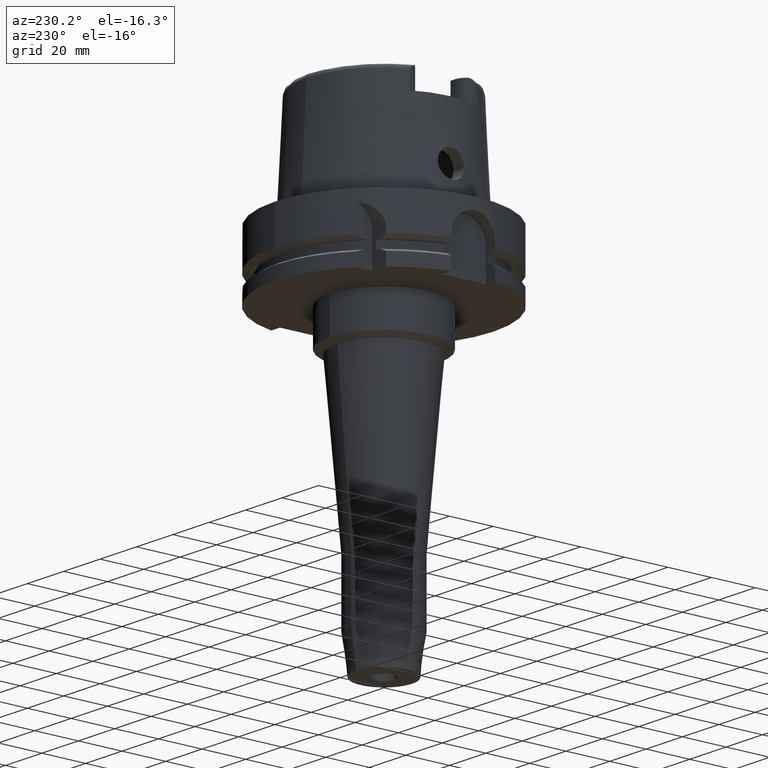
[diagram: clean part render]
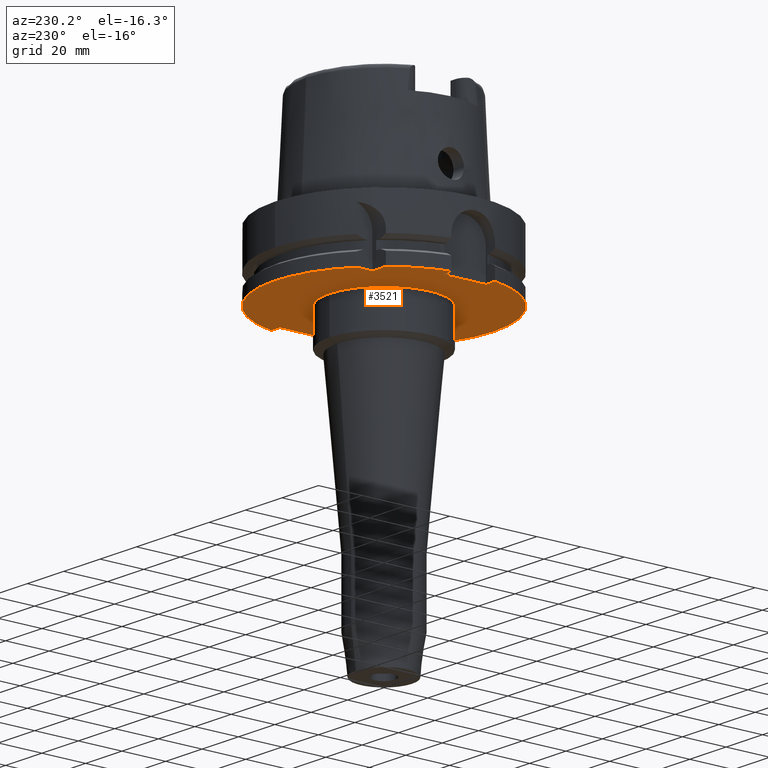
[diagram: same view with one face highlighted and labeled with its STEP entity id]
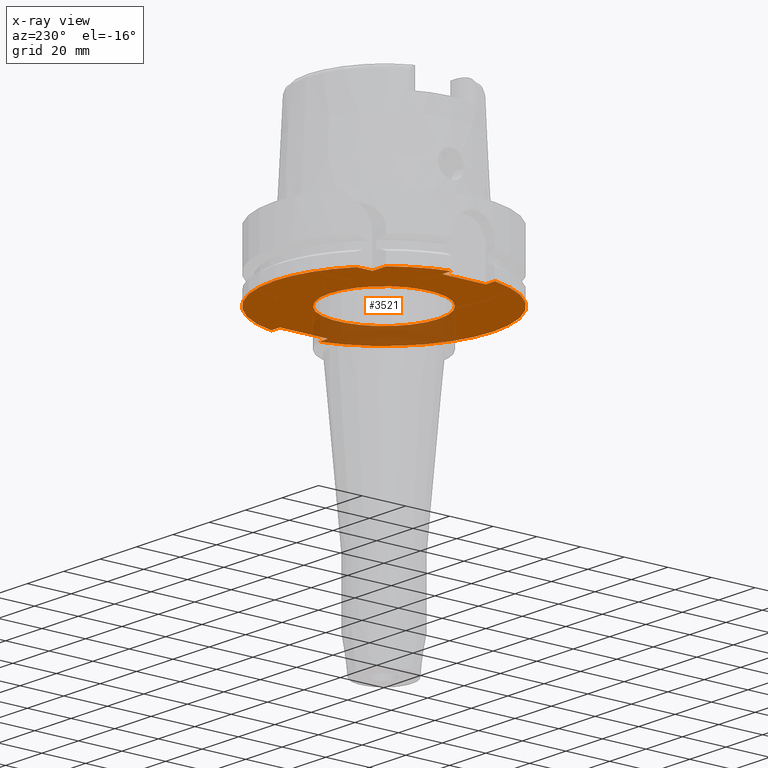
[diagram: x-ray of the same camera — body ghosted, the highlighted face saturated]
A machine part, auxiliary view. The second image highlights one B-rep face of the part: STEP entity #3521.
The next image is the same camera in x-ray: the body ghosted, the highlighted face saturated — about 24% of this face is hidden behind the body in this view.
In plain terms, the highlighted planar face has unit normal (0, 0, 1).
Its self-contained STEP definition (entity closure, byte-faithful):
#1225=DIRECTION('',(-1.E0,-4.798503851106E-14,0.E0));
#1226=VECTOR('',#1225,7.329756630709E0);
#1227=CARTESIAN_POINT('',(-3.15E1,3.15E1,-2.9E1));
#1228=LINE('',#1227,#1226);
#1232=CARTESIAN_POINT('',(0.E0,0.E0,-2.9E1));
#1233=DIRECTION('',(0.E0,0.E0,1.E0));
#1234=DIRECTION('',(-7.765951326142E-1,6.3E-1,0.E0));
#1235=AXIS2_PLACEMENT_3D('',#1232,#1233,#1234);
#1240=DIRECTION('',(-1.E0,-4.627973610177E-14,0.E0));
#1241=VECTOR('',#1240,4.989794855662E0);
#1242=CARTESIAN_POINT('',(-4.4E1,-1.E1,-2.9E1));
#1243=LINE('',#1242,#1241);
#1247=CARTESIAN_POINT('',(0.E0,0.E0,-2.9E1));
#1248=DIRECTION('',(0.E0,0.E0,1.E0));
#1249=DIRECTION('',(-9.797958971133E-1,-2.E-1,0.E0));
#1250=AXIS2_PLACEMENT_3D('',#1247,#1248,#1249);
#1255=CARTESIAN_POINT('',(0.E0,0.E0,-2.9E1));
#1256=DIRECTION('',(0.E0,0.E0,1.E0));
#1257=DIRECTION('',(0.E0,-1.E0,0.E0));
#1258=AXIS2_PLACEMENT_3D('',#1255,#1256,#1257);
#1263=DIRECTION('',(-1.E0,-1.711257052401E-14,0.E0));
#1264=VECTOR('',#1263,4.774993593029E0);
#1265=CARTESIAN_POINT('',(4.877499359303E1,-1.1E1,-2.9E1));
#1266=LINE('',#1265,#1264);
#1270=CARTESIAN_POINT('',(0.E0,0.E0,-2.9E1));
#1271=DIRECTION('',(0.E0,0.E0,1.E0));
#1272=DIRECTION('',(9.754998718606E-1,2.2E-1,0.E0));
#1273=AXIS2_PLACEMENT_3D('',#1270,#1271,#1272);
#1278=CARTESIAN_POINT('',(0.E0,0.E0,-2.9E1));
#1279=DIRECTION('',(0.E0,0.E0,1.E0));
#1280=DIRECTION('',(0.E0,1.E0,0.E0));
#1281=AXIS2_PLACEMENT_3D('',#1278,#1279,#1280);
#1286=CARTESIAN_POINT('',(0.E0,0.E0,-2.9E1));
#1287=DIRECTION('',(0.E0,0.E0,-1.E0));
#1288=DIRECTION('',(0.E0,-1.E0,0.E0));
#1289=AXIS2_PLACEMENT_3D('',#1286,#1287,#1288);
#1294=CARTESIAN_POINT('',(0.E0,0.E0,-2.9E1));
#1295=DIRECTION('',(0.E0,0.E0,-1.E0));
#1296=DIRECTION('',(0.E0,1.E0,0.E0));
#1297=AXIS2_PLACEMENT_3D('',#1294,#1295,#1296);
#1302=DIRECTION('',(4.798503851106E-14,1.E0,0.E0));
#1303=VECTOR('',#1302,7.329756630709E0);
#1304=CARTESIAN_POINT('',(-3.15E1,3.15E1,-2.9E1));
#1305=LINE('',#1304,#1303);
#1348=DIRECTION('',(-1.E0,1.785659532940E-14,0.E0));
#1349=VECTOR('',#1348,4.774993593029E0);
#1350=CARTESIAN_POINT('',(4.877499359303E1,1.1E1,-2.9E1));
#1351=LINE('',#1350,#1349);
#1362=DIRECTION('',(0.E0,-1.E0,0.E0));
#1363=VECTOR('',#1362,2.2E1);
#1364=CARTESIAN_POINT('',(4.4E1,1.1E1,-2.9E1));
#1365=LINE('',#1364,#1363);
#1441=DIRECTION('',(0.E0,1.E0,0.E0));
#1442=VECTOR('',#1441,2.E1);
#1443=CARTESIAN_POINT('',(-4.4E1,-1.E1,-2.9E1));
#1444=LINE('',#1443,#1442);
#1464=DIRECTION('',(-1.E0,4.627973610177E-14,0.E0));
#1465=VECTOR('',#1464,4.989794855662E0);
#1466=CARTESIAN_POINT('',(-4.4E1,1.E1,-2.9E1));
#1467=LINE('',#1466,#1465);
#2425=CARTESIAN_POINT('',(0.E0,2.5E1,-2.9E1));
#2426=VERTEX_POINT('',#2425);
#2427=CARTESIAN_POINT('',(0.E0,-2.5E1,-2.9E1));
#2428=VERTEX_POINT('',#2427);
#2429=CARTESIAN_POINT('',(-3.15E1,3.15E1,-2.9E1));
#2430=CARTESIAN_POINT('',(-3.15E1,3.882975663071E1,-2.9E1));
#2431=VERTEX_POINT('',#2429);
#2432=VERTEX_POINT('',#2430);
#2433=CARTESIAN_POINT('',(-3.882975663071E1,3.15E1,-2.9E1));
#2434=VERTEX_POINT('',#2433);
#2435=CARTESIAN_POINT('',(-4.898979485566E1,1.E1,-2.9E1));
#2436=VERTEX_POINT('',#2435);
#2437=CARTESIAN_POINT('',(-4.4E1,1.E1,-2.9E1));
#2438=VERTEX_POINT('',#2437);
#2439=CARTESIAN_POINT('',(-4.4E1,-1.E1,-2.9E1));
#2440=VERTEX_POINT('',#2439);
#2441=CARTESIAN_POINT('',(-4.898979485566E1,-1.E1,-2.9E1));
#2442=VERTEX_POINT('',#2441);
#2443=CARTESIAN_POINT('',(-6.821749291191E-14,-5.E1,-2.9E1));
#2444=CARTESIAN_POINT('',(4.877499359303E1,-1.1E1,-2.9E1));
#2445=VERTEX_POINT('',#2443);
#2446=VERTEX_POINT('',#2444);
#2447=CARTESIAN_POINT('',(4.4E1,-1.1E1,-2.9E1));
#2448=VERTEX_POINT('',#2447);
#2449=CARTESIAN_POINT('',(4.4E1,1.1E1,-2.9E1));
#2450=VERTEX_POINT('',#2449);
#2451=CARTESIAN_POINT('',(4.877499359303E1,1.1E1,-2.9E1));
#2452=VERTEX_POINT('',#2451);
#2453=CARTESIAN_POINT('',(-6.019535474874E-14,5.E1,-2.9E1));
#2454=VERTEX_POINT('',#2453);
#3484=CARTESIAN_POINT('',(0.E0,0.E0,-2.9E1));
#3485=DIRECTION('',(0.E0,0.E0,1.E0));
#3486=DIRECTION('',(0.E0,1.E0,0.E0));
#3487=AXIS2_PLACEMENT_3D('',#3484,#3485,#3486);
#3488=PLANE('',#3487);
#3490=ORIENTED_EDGE('',*,*,#3489,.F.);
#3492=ORIENTED_EDGE('',*,*,#3491,.T.);
#3494=ORIENTED_EDGE('',*,*,#3493,.T.);
#3496=ORIENTED_EDGE('',*,*,#3495,.F.);
#3498=ORIENTED_EDGE('',*,*,#3497,.F.);
#3500=ORIENTED_EDGE('',*,*,#3499,.T.);
#3502=ORIENTED_EDGE('',*,*,#3501,.T.);
#3504=ORIENTED_EDGE('',*,*,#3503,.T.);
#3506=ORIENTED_EDGE('',*,*,#3505,.T.);
#3508=ORIENTED_EDGE('',*,*,#3507,.F.);
#3510=ORIENTED_EDGE('',*,*,#3509,.F.);
#3512=ORIENTED_EDGE('',*,*,#3511,.T.);
#3514=ORIENTED_EDGE('',*,*,#3513,.T.);
#3515=EDGE_LOOP('',(#3490,#3492,#3494,#3496,#3498,#3500,#3502,#3504,#3506,#3508,
#3510,#3512,#3514));
#3516=FACE_OUTER_BOUND('',#3515,.F.);
#3517=ORIENTED_EDGE('',*,*,#3477,.T.);
#3518=ORIENTED_EDGE('',*,*,#3466,.T.);
#3519=EDGE_LOOP('',(#3517,#3518));
#3520=FACE_BOUND('',#3519,.F.);
#1236=CIRCLE('',#1235,5.E1);
#1251=CIRCLE('',#1250,5.E1);
#1259=CIRCLE('',#1258,5.E1);
#1274=CIRCLE('',#1273,5.E1);
#1282=CIRCLE('',#1281,5.E1);
#1290=CIRCLE('',#1289,2.5E1);
#1298=CIRCLE('',#1297,2.5E1);
#3466=EDGE_CURVE('',#2426,#2428,#1298,.T.);
#3477=EDGE_CURVE('',#2428,#2426,#1290,.T.);
#3489=EDGE_CURVE('',#2431,#2432,#1305,.T.);
#3491=EDGE_CURVE('',#2431,#2434,#1228,.T.);
#3493=EDGE_CURVE('',#2434,#2436,#1236,.T.);
#3495=EDGE_CURVE('',#2438,#2436,#1467,.T.);
#3497=EDGE_CURVE('',#2440,#2438,#1444,.T.);
#3499=EDGE_CURVE('',#2440,#2442,#1243,.T.);
#3501=EDGE_CURVE('',#2442,#2445,#1251,.T.);
#3503=EDGE_CURVE('',#2445,#2446,#1259,.T.);
#3505=EDGE_CURVE('',#2446,#2448,#1266,.T.);
#3507=EDGE_CURVE('',#2450,#2448,#1365,.T.);
#3509=EDGE_CURVE('',#2452,#2450,#1351,.T.);
#3511=EDGE_CURVE('',#2452,#2454,#1274,.T.);
#3513=EDGE_CURVE('',#2454,#2432,#1282,.T.);
#3521=ADVANCED_FACE('',(#3516,#3520),#3488,.F.);